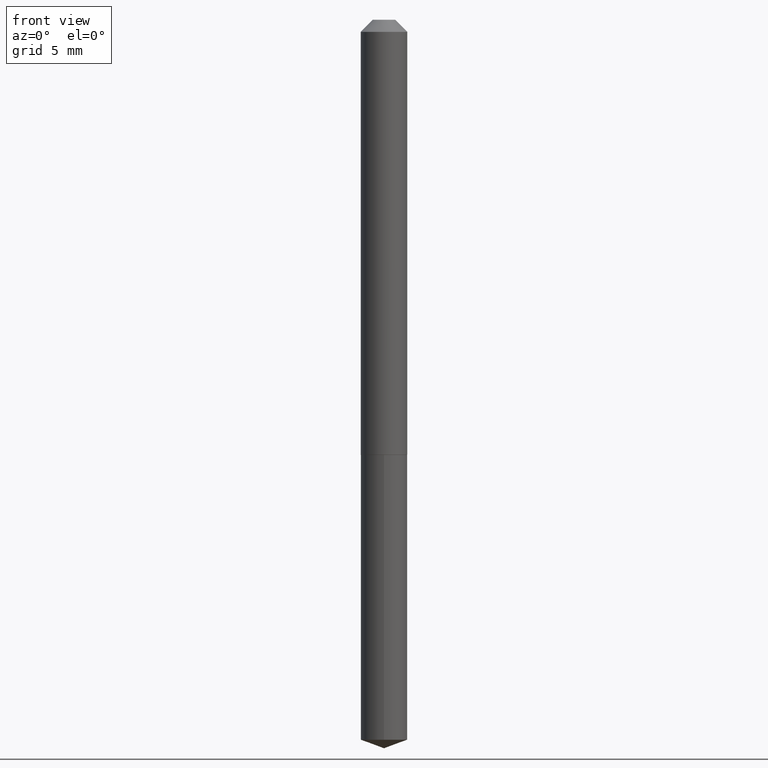
[diagram: clean part render]
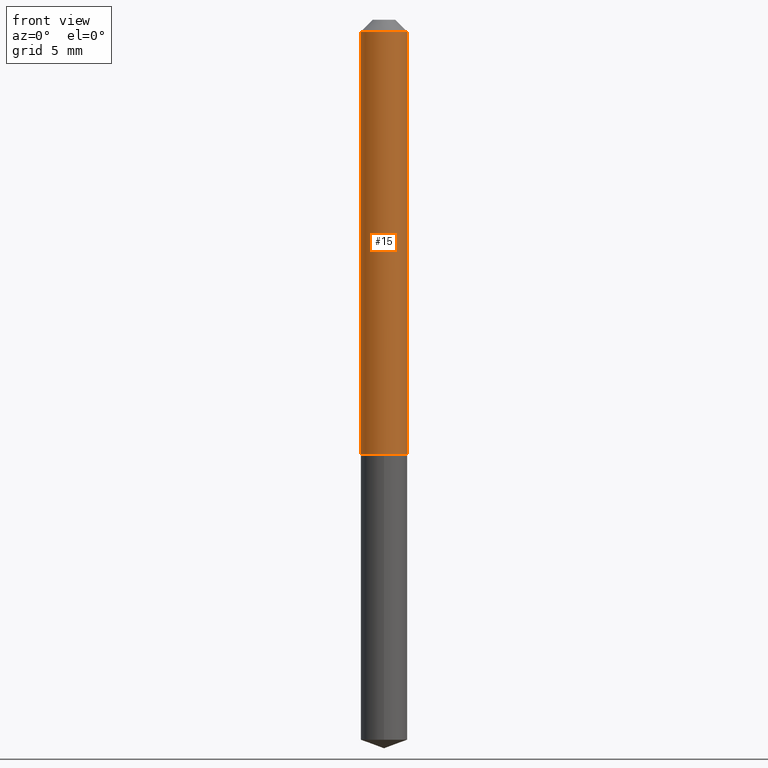
[diagram: same view with one face highlighted and labeled with its STEP entity id]
A machine part, front view. The second image highlights one B-rep face of the part: STEP entity #15.
In plain terms, the highlighted cylindrical surface (edge-blend (fillet) strip) has radius 1.524 mm, axis along (-0, 0, 1).
Its self-contained STEP definition (entity closure, byte-faithful):
#15 = ADVANCED_FACE ( 'NONE', ( #86 ), #22, .T. ) ;
#19 = VECTOR ( 'NONE', #195, 39.37007874015748143 ) ;
#22 = CYLINDRICAL_SURFACE ( 'NONE', #116, 0.06000000000000007411 ) ;
#24 = VERTEX_POINT ( 'NONE', #382 ) ;
#28 = DIRECTION ( 'NONE',  ( -2.445468806185136877E-29, 3.491481338843145188E-15, 1.000000000000000000 ) ) ;
#32 = CIRCLE ( 'NONE', #63, 0.05999999999999999778 ) ;
#58 = EDGE_CURVE ( 'NONE', #270, #168, #371, .T. ) ;
#63 = AXIS2_PLACEMENT_3D ( 'NONE', #226, #337, #310 ) ;
#73 = CARTESIAN_POINT ( 'NONE',  ( -0.06000000000000007411, 4.263256414560606381E-16, -2.951361054152947267E-30 ) ) ;
#86 = FACE_OUTER_BOUND ( 'NONE', #241, .T. ) ;
#116 = AXIS2_PLACEMENT_3D ( 'NONE', #351, #374, #349 ) ;
#119 = DIRECTION ( 'NONE',  ( -2.445468806185136597E-29, 3.491481338843145583E-15, 1.000000000000000000 ) ) ;
#136 = CARTESIAN_POINT ( 'NONE',  ( -0.06000000000000014350, -3.482387717378840223E-15, -1.119499999999999940 ) ) ;
#153 = EDGE_CURVE ( 'NONE', #270, #296, #364, .T. ) ;
#165 = EDGE_CURVE ( 'NONE', #296, #24, #32, .T. ) ;
#168 = VERTEX_POINT ( 'NONE', #367 ) ;
#181 = DIRECTION ( 'NONE',  ( 1.000000000000000000, -6.982962677686268288E-15, 0.000000000000000000 ) ) ;
#182 = AXIS2_PLACEMENT_3D ( 'NONE', #261, #119, #181 ) ;
#185 = ORIENTED_EDGE ( 'NONE', *, *, #320, .T. ) ;
#193 = ORIENTED_EDGE ( 'NONE', *, *, #58, .T. ) ;
#195 = DIRECTION ( 'NONE',  ( -2.445468806185136877E-29, 3.491481338843145188E-15, 1.000000000000000000 ) ) ;
#218 = VECTOR ( 'NONE', #28, 39.37007874015748143 ) ;
#226 = CARTESIAN_POINT ( 'NONE',  ( 7.642090019328600035E-31, -1.091087918388489897E-16, -0.03125000000000020123 ) ) ;
#240 = ORIENTED_EDGE ( 'NONE', *, *, #165, .F. ) ;
#241 = EDGE_LOOP ( 'NONE', ( #355, #193, #185, #240 ) ) ;
#245 = CARTESIAN_POINT ( 'NONE',  ( -0.05999999999999999778, -1.582585433880813825E-15, -0.03125000000000020123 ) ) ;
#261 = CARTESIAN_POINT ( 'NONE',  ( 2.737702328524260097E-29, -3.908713358834901896E-15, -1.119499999999999940 ) ) ;
#270 = VERTEX_POINT ( 'NONE', #136 ) ;
#296 = VERTEX_POINT ( 'NONE', #245 ) ;
#307 = LINE ( 'NONE', #370, #218 ) ;
#310 = DIRECTION ( 'NONE',  ( 1.000000000000000000, -6.982962677686267499E-15, 0.000000000000000000 ) ) ;
#320 = EDGE_CURVE ( 'NONE', #168, #24, #307, .T. ) ;
#337 = DIRECTION ( 'NONE',  ( -2.445468806185136597E-29, 3.491481338843145583E-15, 1.000000000000000000 ) ) ;
#349 = DIRECTION ( 'NONE',  ( 1.000000000000000000, -6.982962677686266711E-15, 4.876176775795936353E-29 ) ) ;
#351 = CARTESIAN_POINT ( 'NONE',  ( 0.000000000000000000, 0.000000000000000000, 0.000000000000000000 ) ) ;
#355 = ORIENTED_EDGE ( 'NONE', *, *, #153, .F. ) ;
#364 = LINE ( 'NONE', #73, #19 ) ;
#367 = CARTESIAN_POINT ( 'NONE',  ( 0.06000000000000014350, -4.327691119496078530E-15, -1.119499999999999940 ) ) ;
#370 = CARTESIAN_POINT ( 'NONE',  ( 0.06000000000000007411, -4.189777606611765351E-16, 2.925706065477565259E-30 ) ) ;
#371 = CIRCLE ( 'NONE', #182, 0.06000000000000014350 ) ;
#374 = DIRECTION ( 'NONE',  ( -2.445468806185136597E-29, 3.491481338843145583E-15, 1.000000000000000000 ) ) ;
#382 = CARTESIAN_POINT ( 'NONE',  ( 0.05999999999999999778, -5.280865525000250441E-16, -0.03125000000000020123 ) ) ;